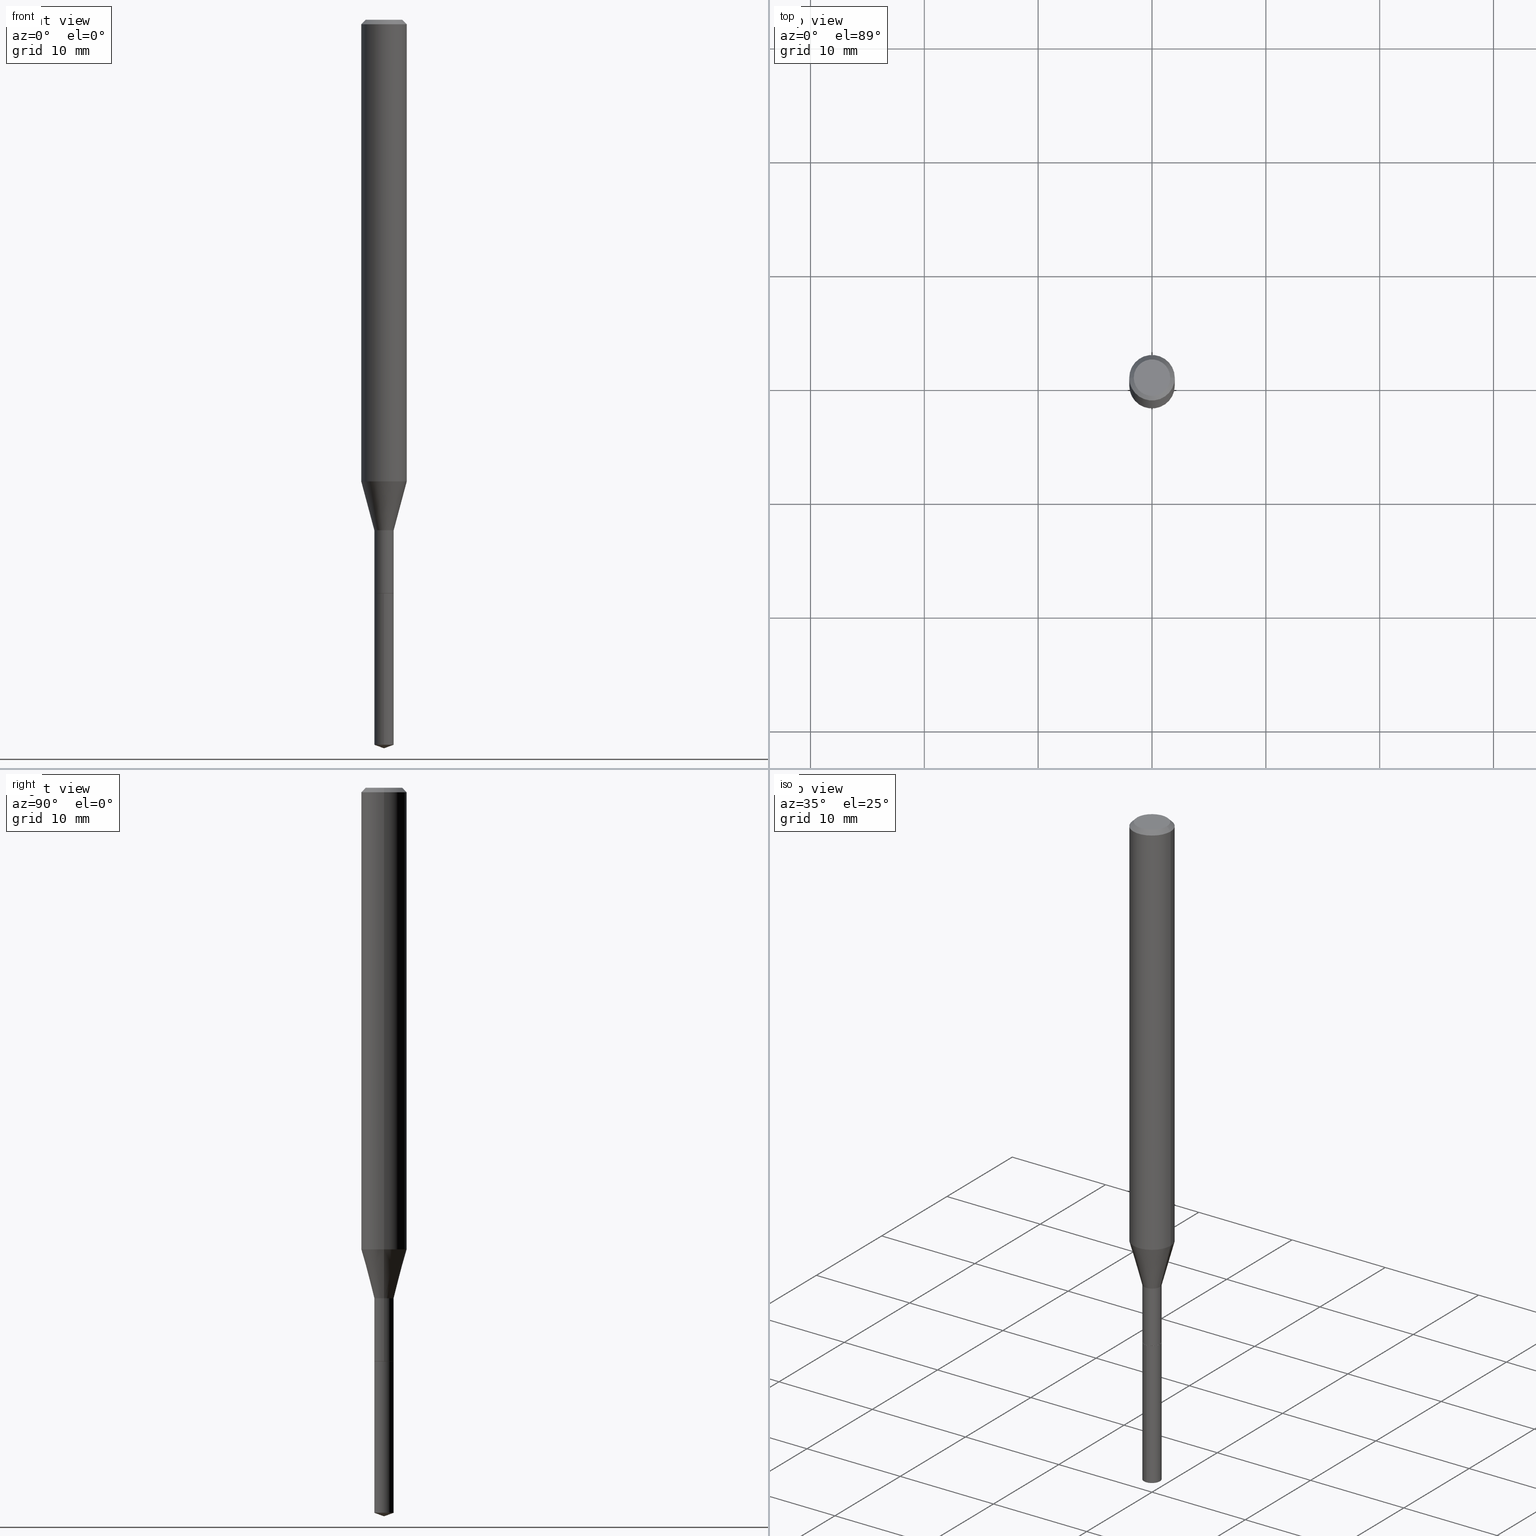
[diagram: canonical four-view strip — front | top / right | iso, engineering-drawing reading convention]
A machine part, canonical four-view strip (front | top / right | iso — engineering-drawing reading convention). The complete STEP part file that produces these views, byte-faithful:
ISO-10303-21;
HEADER;
FILE_DESCRIPTION (( 'STEP AP203' ),
    '1' );
FILE_NAME ('06007.STEP',
    '2024-04-23T19:00:32',
    ( '' ),
    ( '' ),
    'SwSTEP 2.0',
    'SolidWorks 2023',
    '' );
FILE_SCHEMA (( 'CONFIG_CONTROL_DESIGN' ));
ENDSEC;

DATA;
#1 = AXIS2_PLACEMENT_3D ( 'NONE', #441, #94, #180 ) ;
#2 = DIRECTION ( 'NONE',  ( 1.000000000000000000, -6.982962677686269077E-15, 0.000000000000000000 ) ) ;
#3 = ORIENTED_EDGE ( 'NONE', *, *, #461, .T. ) ;
#4 = DIRECTION ( 'NONE',  ( 2.445468806185136597E-29, -3.491481338843145583E-15, -1.000000000000000000 ) ) ;
#5 = ADVANCED_FACE ( 'NONE', ( #347 ), #416, .T. ) ;
#6 = DIRECTION ( 'NONE',  ( 1.000000000000000000, -6.982962677686264344E-15, 0.000000000000000000 ) ) ;
#7 = AXIS2_PLACEMENT_3D ( 'NONE', #42, #460, #79 ) ;
#8 = VECTOR ( 'NONE', #291, 39.37007874015748143 ) ;
#9 = DIRECTION ( 'NONE',  ( -0.7071067811865453523, 2.468850131082234184E-15, -0.7071067811865496822 ) ) ;
#10 = LINE ( 'NONE', #326, #344 ) ;
#11 = DIRECTION ( 'NONE',  ( -2.445468806185136597E-29, 3.491481338843145583E-15, 1.000000000000000000 ) ) ;
#12 = ORIENTED_EDGE ( 'NONE', *, *, #35, .F. ) ;
#13 = AXIS2_PLACEMENT_3D ( 'NONE', #165, #354, #420 ) ;
#14 = DIRECTION ( 'NONE',  ( -2.445468806185136597E-29, 3.491481338843145583E-15, 1.000000000000000000 ) ) ;
#15 = APPROVAL_PERSON_ORGANIZATION ( #192, #60, #309 ) ;
#16 = ORIENTED_EDGE ( 'NONE', *, *, #339, .F. ) ;
#17 = EDGE_CURVE ( 'NONE', #301, #332, #158, .T. ) ;
#18 = FACE_OUTER_BOUND ( 'NONE', #172, .T. ) ;
#19 = ORIENTED_EDGE ( 'NONE', *, *, #308, .T. ) ;
#20 = CYLINDRICAL_SURFACE ( 'NONE', #183, 0.07875000000000009770 ) ;
#21 = VERTEX_POINT ( 'NONE', #375 ) ;
#22 = COORDINATED_UNIVERSAL_TIME_OFFSET ( 5, 0, .BEHIND. ) ;
#23 = AXIS2_PLACEMENT_3D ( 'NONE', #488, #110, #269 ) ;
#24 = VECTOR ( 'NONE', #376, 39.37007874015748143 ) ;
#25 = ORIENTED_EDGE ( 'NONE', *, *, #448, .T. ) ;
#26 = ORIENTED_EDGE ( 'NONE', *, *, #474, .F. ) ;
#27 = ADVANCED_FACE ( 'NONE', ( #230 ), #452, .F. ) ;
#28 = DIRECTION ( 'NONE',  ( -2.445468806185136597E-29, 3.491481338843145583E-15, 1.000000000000000000 ) ) ;
#29 = DIRECTION ( 'NONE',  ( -2.445468806185136597E-29, 3.491481338843145583E-15, 1.000000000000000000 ) ) ;
#30 = APPROVAL_STATUS ( 'not_yet_approved' ) ;
#31 = EDGE_LOOP ( 'NONE', ( #470, #232, #196, #472 ) ) ;
#32 = AXIS2_PLACEMENT_3D ( 'NONE', #190, #78, #444 ) ;
#33 = AXIS2_PLACEMENT_3D ( 'NONE', #465, #39, #45 ) ;
#34 = DIRECTION ( 'NONE',  ( 1.000000000000000000, -6.982962677686251722E-15, 0.000000000000000000 ) ) ;
#35 = EDGE_CURVE ( 'NONE', #136, #290, #173, .T. ) ;
#36 = ORIENTED_EDGE ( 'NONE', *, *, #120, .F. ) ;
#37 = DATE_TIME_ROLE ( 'classification_date' ) ;
#38 = CARTESIAN_POINT ( 'NONE',  ( 3.851613369741614799E-31, -5.499083108677989540E-17, -0.01575000000000010072 ) ) ;
#39 = DIRECTION ( 'NONE',  ( -2.445468806185136597E-29, 3.491481338843145583E-15, 1.000000000000000000 ) ) ;
#40 = CIRCLE ( 'NONE', #66, 0.03344999999999999363 ) ;
#41 = CALENDAR_DATE ( 2024, 23, 4 ) ;
#42 = CARTESIAN_POINT ( 'NONE',  ( 6.132138657409497582E-29, -8.754885760387229464E-15, -2.507525195663795614 ) ) ;
#43 = EDGE_CURVE ( 'NONE', #431, #301, #349, .T. ) ;
#44 = ORIENTED_EDGE ( 'NONE', *, *, #129, .F. ) ;
#45 = DIRECTION ( 'NONE',  ( 1.000000000000000000, -6.982962677686255667E-15, 0.000000000000000000 ) ) ;
#46 = FACE_OUTER_BOUND ( 'NONE', #99, .T. ) ;
#47 = AXIS2_PLACEMENT_3D ( 'NONE', #338, #481, #262 ) ;
#48 = CIRCLE ( 'NONE', #216, 0.07875000000000019484 ) ;
#49 = EDGE_CURVE ( 'NONE', #107, #176, #412, .T. ) ;
#50 = FACE_OUTER_BOUND ( 'NONE', #405, .T. ) ;
#51 = DIRECTION ( 'NONE',  ( 6.676917655467983117E-15, 0.9396926207859117586, 0.3420201433256597756 ) ) ;
#52 = ORIENTED_EDGE ( 'NONE', *, *, #281, .F. ) ;
#53 = CARTESIAN_POINT ( 'NONE',  ( 3.904284117565225006E-29, -5.574282977375527399E-15, -1.596538098417129126 ) ) ;
#54 = VERTEX_POINT ( 'NONE', #298 ) ;
#55 = EDGE_CURVE ( 'NONE', #301, #431, #372, .T. ) ;
#56 = VECTOR ( 'NONE', #466, 39.37007874015748143 ) ;
#57 = CYLINDRICAL_SURFACE ( 'NONE', #479, 0.03345000000000000057 ) ;
#58 = LOCAL_TIME ( 15, 0, 32.00000000000000000, #148 ) ;
#59 = ORIENTED_EDGE ( 'NONE', *, *, #281, .T. ) ;
#60 = APPROVAL ( #480, 'UNSPECIFIED' ) ;
#61 = CYLINDRICAL_SURFACE ( 'NONE', #1, 0.07875000000000009770 ) ;
#62 = VERTEX_POINT ( 'NONE', #227 ) ;
#63 = ORIENTED_EDGE ( 'NONE', *, *, #378, .T. ) ;
#64 =( LENGTH_UNIT ( ) NAMED_UNIT ( * ) SI_UNIT ( $, .METRE. ) );
#65 = ADVANCED_FACE ( 'NONE', ( #414 ), #166, .T. ) ;
#66 = AXIS2_PLACEMENT_3D ( 'NONE', #395, #11, #476 ) ;
#67 = FACE_OUTER_BOUND ( 'NONE', #361, .T. ) ;
#68 = DIRECTION ( 'NONE',  ( 1.000000000000000000, -6.982962677686265922E-15, 0.000000000000000000 ) ) ;
#69 = DIRECTION ( 'NONE',  ( 0.2588190451025211836, 1.565188264969622559E-15, 0.9659258262890679791 ) ) ;
#70 = CC_DESIGN_DATE_AND_TIME_ASSIGNMENT ( #263, #229, ( #131 ) ) ;
#71 = CARTESIAN_POINT ( 'NONE',  ( 3.851613369741614799E-31, -5.499083108677989540E-17, -0.01575000000000010072 ) ) ;
#72 = ORIENTED_EDGE ( 'NONE', *, *, #461, .F. ) ;
#73 = ADVANCED_FACE ( 'NONE', ( #154 ), #343, .T. ) ;
#74 = CALENDAR_DATE ( 2024, 23, 4 ) ;
#75 = ORIENTED_EDGE ( 'NONE', *, *, #199, .F. ) ;
#76 = CIRCLE ( 'NONE', #302, 0.03345000000000000057 ) ;
#77 = SECURITY_CLASSIFICATION_LEVEL ( 'unclassified' ) ;
#78 = DIRECTION ( 'NONE',  ( -2.445468806185136597E-29, 3.491481338843145583E-15, 1.000000000000000000 ) ) ;
#79 = DIRECTION ( 'NONE',  ( -6.982962677686264344E-15, -1.000000000000000000, 0.000000000000000000 ) ) ;
#80 = FACE_OUTER_BOUND ( 'NONE', #468, .T. ) ;
#81 = EDGE_CURVE ( 'NONE', #290, #305, #112, .T. ) ;
#82 = LOCAL_TIME ( 15, 0, 32.00000000000000000, #145 ) ;
#83 = DIRECTION ( 'NONE',  ( -2.445468806185136877E-29, 3.491481338843145188E-15, 1.000000000000000000 ) ) ;
#84 = CARTESIAN_POINT ( 'NONE',  ( -2.335801015685570442E-16, -0.03345000000000692558, -1.984299999999999953 ) ) ;
#85 = ADVANCED_FACE ( 'NONE', ( #67 ), #226, .F. ) ;
#86 = FACE_OUTER_BOUND ( 'NONE', #442, .T. ) ;
#87 = AXIS2_PLACEMENT_3D ( 'NONE', #348, #4, #322 ) ;
#88 = AXIS2_PLACEMENT_3D ( 'NONE', #171, #248, #329 ) ;
#89 = PRODUCT_RELATED_PRODUCT_CATEGORY ( 'detail', '', ( #341 ) ) ;
#90 = LINE ( 'NONE', #393, #134 ) ;
#91 = ORIENTED_EDGE ( 'NONE', *, *, #489, .F. ) ;
#92 = DIRECTION ( 'NONE',  ( -2.445468806185136597E-29, 3.491481338843145583E-15, 1.000000000000000000 ) ) ;
#93 = EDGE_LOOP ( 'NONE', ( #450, #327, #364, #26 ) ) ;
#94 = DIRECTION ( 'NONE',  ( -2.445468806185136597E-29, 3.491481338843145583E-15, 1.000000000000000000 ) ) ;
#95 = VERTEX_POINT ( 'NONE', #424 ) ;
#96 = ADVANCED_FACE ( 'NONE', ( #163 ), #239, .T. ) ;
#97 = AXIS2_PLACEMENT_3D ( 'NONE', #272, #390, #421 ) ;
#98 = CARTESIAN_POINT ( 'NONE',  ( 3.851613369741614799E-31, -5.499083108677989540E-17, -0.01575000000000010072 ) ) ;
#99 = EDGE_LOOP ( 'NONE', ( #139, #19, #379, #478 ) ) ;
#100 = CARTESIAN_POINT ( 'NONE',  ( 0.07875000000000000056, -6.048991419545733705E-16, -0.01575000000000010072 ) ) ;
#101 = EDGE_LOOP ( 'NONE', ( #296, #382, #149, #422 ) ) ;
#102 = EDGE_CURVE ( 'NONE', #95, #107, #160, .T. ) ;
#103 = ORIENTED_EDGE ( 'NONE', *, *, #49, .T. ) ;
#104 = APPROVAL ( #319, 'UNSPECIFIED' ) ;
#105 = DIRECTION ( 'NONE',  ( 1.000000000000000000, 0.000000000000000000, 0.000000000000000000 ) ) ;
#106 = CIRCLE ( 'NONE', #314, 0.03344999999999999363 ) ;
#107 = VERTEX_POINT ( 'NONE', #387 ) ;
#108 = PRODUCT_DEFINITION_SHAPE ( 'NONE', 'NONE',  #131 ) ;
#109 = MECHANICAL_CONTEXT ( 'NONE', #299, 'mechanical' ) ;
#110 = DIRECTION ( 'NONE',  ( -2.445468806185136597E-29, 3.491481338843145583E-15, 1.000000000000000000 ) ) ;
#111 = PERSON_AND_ORGANIZATION_ROLE ( 'creator' ) ;
#112 = LINE ( 'NONE', #266, #115 ) ;
#113 = CARTESIAN_POINT ( 'NONE',  ( -2.335801015685570442E-16, -0.03345000000000692558, -1.984299999999999953 ) ) ;
#114 = CARTESIAN_POINT ( 'NONE',  ( 0.07875000000000000056, -5.952550484112880131E-16, -0.01575000000000010072 ) ) ;
#115 = VECTOR ( 'NONE', #408, 39.37007874015748143 ) ;
#116 = AXIS2_PLACEMENT_3D ( 'NONE', #259, #194, #346 ) ;
#117 = AXIS2_PLACEMENT_3D ( 'NONE', #132, #92, #282 ) ;
#118 = LINE ( 'NONE', #204, #312 ) ;
#119 = PERSON_AND_ORGANIZATION ( #235, #240 ) ;
#120 = EDGE_CURVE ( 'NONE', #305, #107, #490, .T. ) ;
#121 = DIRECTION ( 'NONE',  ( -6.982962677686267499E-15, -1.000000000000000000, 3.475157955500663810E-15 ) ) ;
#122 = EDGE_LOOP ( 'NONE', ( #205, #369, #213, #394 ) ) ;
#123 = CARTESIAN_POINT ( 'NONE',  ( 4.317719724200476827E-29, -6.164559451861457160E-15, -1.765599999999999836 ) ) ;
#124 = APPLICATION_CONTEXT ( 'configuration controlled 3d designs of mechanical parts and assemblies' ) ;
#125 = CIRCLE ( 'NONE', #453, 0.03345000000000000057 ) ;
#126 = PRODUCT_DEFINITION_FORMATION_WITH_SPECIFIED_SOURCE ( 'ANY', '', #341, .NOT_KNOWN. ) ;
#127 = COORDINATED_UNIVERSAL_TIME_OFFSET ( 5, 0, .BEHIND. ) ;
#128 = CARTESIAN_POINT ( 'NONE',  ( 4.317719724200476827E-29, -6.164559451861457160E-15, -1.765599999999999836 ) ) ;
#129 = EDGE_CURVE ( 'NONE', #62, #438, #223, .T. ) ;
#130 = CARTESIAN_POINT ( 'NONE',  ( 3.904284117565225006E-29, -5.574282977375527399E-15, -1.596538098417129126 ) ) ;
#131 = PRODUCT_DEFINITION ( 'UNKNOWN', '', #126, #455 ) ;
#132 = CARTESIAN_POINT ( 'NONE',  ( 0.000000000000000000, 0.000000000000000000, 0.000000000000000000 ) ) ;
#133 = ORIENTED_EDGE ( 'NONE', *, *, #17, .T. ) ;
#134 = VECTOR ( 'NONE', #51, 39.37007874015747433 ) ;
#135 = CARTESIAN_POINT ( 'NONE',  ( -0.03344999999999997281, -5.926882906749703792E-15, -1.765599999999999836 ) ) ;
#136 = VERTEX_POINT ( 'NONE', #462 ) ;
#137 = EDGE_CURVE ( 'NONE', #21, #273, #118, .T. ) ;
#138 = CARTESIAN_POINT ( 'NONE',  ( 0.000000000000000000, 0.000000000000000000, 0.000000000000000000 ) ) ;
#139 = ORIENTED_EDGE ( 'NONE', *, *, #339, .T. ) ;
#140 = LINE ( 'NONE', #135, #454 ) ;
#141 = ORIENTED_EDGE ( 'NONE', *, *, #233, .F. ) ;
#142 = CLOSED_SHELL ( 'NONE', ( #151, #267, #96, #345, #27 ) ) ;
#143 = CYLINDRICAL_SURFACE ( 'NONE', #117, 0.03344999999999997975 ) ;
#144 = ORIENTED_EDGE ( 'NONE', *, *, #440, .F. ) ;
#145 = COORDINATED_UNIVERSAL_TIME_OFFSET ( 5, 0, .BEHIND. ) ;
#146 = DIRECTION ( 'NONE',  ( 1.000000000000000000, -6.982962677686265922E-15, 4.875905316334701673E-29 ) ) ;
#147 = CC_DESIGN_PERSON_AND_ORGANIZATION_ASSIGNMENT ( #463, #278, ( #126 ) ) ;
#148 = COORDINATED_UNIVERSAL_TIME_OFFSET ( 5, 0, .BEHIND. ) ;
#149 = ORIENTED_EDGE ( 'NONE', *, *, #120, .T. ) ;
#150 = CARTESIAN_POINT ( 'NONE',  ( 0.000000000000000000, 0.000000000000000000, 0.000000000000000000 ) ) ;
#151 = ADVANCED_FACE ( 'NONE', ( #279 ), #458, .T. ) ;
#152 = AXIS2_PLACEMENT_3D ( 'NONE', #128, #238, #386 ) ;
#153 = VECTOR ( 'NONE', #9, 39.37007874015748143 ) ;
#154 = FACE_OUTER_BOUND ( 'NONE', #101, .T. ) ;
#155 =( CONVERSION_BASED_UNIT ( 'INCH', #265 ) LENGTH_UNIT ( ) NAMED_UNIT ( #324 ) );
#156 = VERTEX_POINT ( 'NONE', #84 ) ;
#157 = MANIFOLD_SOLID_BREP ( 'Body-Move/Copy2[2]', #363 ) ;
#158 = LINE ( 'NONE', #114, #477 ) ;
#159 = FACE_OUTER_BOUND ( 'NONE', #31, .T. ) ;
#160 = CIRCLE ( 'NONE', #152, 0.03344999999999997281 ) ;
#161 = CIRCLE ( 'NONE', #380, 0.07875000000000000056 ) ;
#162 = DIRECTION ( 'NONE',  ( -2.445591144885440366E-29, 3.491306142861223975E-15, 1.000000000000000000 ) ) ;
#163 = FACE_OUTER_BOUND ( 'NONE', #396, .T. ) ;
#164 = PERSON_AND_ORGANIZATION_ROLE ( 'classification_officer' ) ;
#165 = CARTESIAN_POINT ( 'NONE',  ( 4.852543752113166626E-29, -6.928146420666453587E-15, -1.984299999999999953 ) ) ;
#166 = CONICAL_SURFACE ( 'NONE', #32, 0.03295000000000000012, 0.7853981633975420928 ) ;
#167 = AXIS2_PLACEMENT_3D ( 'NONE', #300, #342, #297 ) ;
#168 = APPROVAL_DATE_TIME ( #426, #104 ) ;
#169 = DIRECTION ( 'NONE',  ( -2.445468806185136597E-29, 3.491481338843145583E-15, 1.000000000000000000 ) ) ;
#170 = DIRECTION ( 'NONE',  ( -6.561838499445215051E-15, -0.9396926207859092051, 0.3420201433256662704 ) ) ;
#171 = CARTESIAN_POINT ( 'NONE',  ( 4.317719724200476827E-29, -6.164559451861457160E-15, -1.765599999999999836 ) ) ;
#172 = EDGE_LOOP ( 'NONE', ( #415, #330, #283, #255 ) ) ;
#173 = CIRCLE ( 'NONE', #23, 0.03295000000000000012 ) ;
#174 = CONICAL_SURFACE ( 'NONE', #284, 108.1684023407352129, 1.221730476396036824 ) ;
#175 = CARTESIAN_POINT ( 'NONE',  ( -0.03344999999999999363, -6.307803520817490859E-15, -1.983800000000000008 ) ) ;
#176 = VERTEX_POINT ( 'NONE', #352 ) ;
#177 = ADVANCED_FACE ( 'NONE', ( #80 ), #275, .T. ) ;
#178 = DIRECTION ( 'NONE',  ( -6.982962677686264344E-15, -1.000000000000000000, 0.000000000000000000 ) ) ;
#179 = EDGE_LOOP ( 'NONE', ( #52, #247, #487, #222 ) ) ;
#180 = DIRECTION ( 'NONE',  ( 1.000000000000000000, -6.982962677686267499E-15, 4.876176775795935232E-29 ) ) ;
#181 = EDGE_CURVE ( 'NONE', #290, #136, #409, .T. ) ;
#182 = ORIENTED_EDGE ( 'NONE', *, *, #43, .T. ) ;
#183 = AXIS2_PLACEMENT_3D ( 'NONE', #138, #14, #211 ) ;
#184 = CALENDAR_DATE ( 2024, 23, 4 ) ;
#185 = CIRCLE ( 'NONE', #224, 0.03345000000000000057 ) ;
#186 = ORIENTED_EDGE ( 'NONE', *, *, #81, .F. ) ;
#187 =( NAMED_UNIT ( * ) SI_UNIT ( $, .STERADIAN. ) SOLID_ANGLE_UNIT ( ) );
#188 = CARTESIAN_POINT ( 'NONE',  ( 9.427742298522557911E-47, -1.346031739168366987E-32, -3.855188123715866879E-18 ) ) ;
#189 = PLANE ( 'NONE',  #167 ) ;
#190 = CARTESIAN_POINT ( 'NONE',  ( 4.852543752113166626E-29, -6.928146420666453587E-15, -1.984299999999999953 ) ) ;
#191 = EDGE_CURVE ( 'NONE', #136, #449, #318, .T. ) ;
#192 = PERSON_AND_ORGANIZATION ( #235, #240 ) ;
#193 = LOCAL_TIME ( 15, 0, 32.00000000000000000, #22 ) ;
#194 = DIRECTION ( 'NONE',  ( -2.445468806185136597E-29, 3.491481338843145583E-15, 1.000000000000000000 ) ) ;
#195 = FACE_OUTER_BOUND ( 'NONE', #335, .T. ) ;
#196 = ORIENTED_EDGE ( 'NONE', *, *, #81, .T. ) ;
#197 = PERSON_AND_ORGANIZATION ( #235, #240 ) ;
#198 = DIRECTION ( 'NONE',  ( -2.445591144885440366E-29, 3.491306142861223975E-15, 1.000000000000000000 ) ) ;
#199 = EDGE_CURVE ( 'NONE', #438, #62, #125, .T. ) ;
#200 = DIRECTION ( 'NONE',  ( -2.445468806185136597E-29, 3.491481338843145583E-15, 1.000000000000000000 ) ) ;
#201 = AXIS2_PLACEMENT_3D ( 'NONE', #241, #236, #427 ) ;
#202 = AXIS2_PLACEMENT_3D ( 'NONE', #123, #429, #207 ) ;
#203 = PERSON_AND_ORGANIZATION ( #235, #240 ) ;
#204 = CARTESIAN_POINT ( 'NONE',  ( -0.07875000000000009770, 5.595524044110795906E-16, -3.873661383575743397E-30 ) ) ;
#205 = ORIENTED_EDGE ( 'NONE', *, *, #17, .F. ) ;
#206 = ADVANCED_FACE ( 'NONE', ( #46 ), #293, .T. ) ;
#207 = DIRECTION ( 'NONE',  ( 1.000000000000000000, -6.982962677686255667E-15, 0.000000000000000000 ) ) ;
#208 = LINE ( 'NONE', #357, #153 ) ;
#209 = AXIS2_PLACEMENT_3D ( 'NONE', #38, #383, #446 ) ;
#210 = LOCAL_TIME ( 15, 0, 32.00000000000000000, #457 ) ;
#211 = DIRECTION ( 'NONE',  ( 1.000000000000000000, -6.982962677686267499E-15, 4.876176775795935232E-29 ) ) ;
#212 = CARTESIAN_POINT ( 'NONE',  ( 2.376765451118020311E-16, 0.03344999999999307555, -1.984299999999999953 ) ) ;
#213 = ORIENTED_EDGE ( 'NONE', *, *, #233, .T. ) ;
#214 = DIRECTION ( 'NONE',  ( -6.982962677686264344E-15, -1.000000000000000000, 0.000000000000000000 ) ) ;
#215 = ORIENTED_EDGE ( 'NONE', *, *, #425, .F. ) ;
#216 = AXIS2_PLACEMENT_3D ( 'NONE', #53, #360, #402 ) ;
#217 = CARTESIAN_POINT ( 'NONE',  ( 0.07875000000000009770, -5.499083108677942332E-16, 3.839989210939303921E-30 ) ) ;
#218 = ORIENTED_EDGE ( 'NONE', *, *, #181, .T. ) ;
#219 = ADVANCED_FACE ( 'NONE', ( #86 ), #358, .T. ) ;
#220 = DIRECTION ( 'NONE',  ( -0.2588190451025211836, 5.211531920934547886E-15, 0.9659258262890679791 ) ) ;
#221 = ORIENTED_EDGE ( 'NONE', *, *, #440, .T. ) ;
#222 = ORIENTED_EDGE ( 'NONE', *, *, #448, .F. ) ;
#223 = CIRCLE ( 'NONE', #7, 0.03345000000000000057 ) ;
#224 = AXIS2_PLACEMENT_3D ( 'NONE', #366, #467, #214 ) ;
#225 = APPLICATION_PROTOCOL_DEFINITION ( 'international standard', 'config_control_design', 1994, #124 ) ;
#226 = PLANE ( 'NONE',  #97 ) ;
#227 = CARTESIAN_POINT ( 'NONE',  ( -2.335801015685441759E-16, -0.03345000000000874357, -2.507525195663795614 ) ) ;
#228 = ADVANCED_FACE ( 'NONE', ( #159 ), #418, .T. ) ;
#229 = DATE_TIME_ROLE ( 'creation_date' ) ;
#230 = FACE_OUTER_BOUND ( 'NONE', #399, .T. ) ;
#231 = LOCAL_TIME ( 15, 0, 32.00000000000000000, #127 ) ;
#232 = ORIENTED_EDGE ( 'NONE', *, *, #35, .T. ) ;
#233 = EDGE_CURVE ( 'NONE', #431, #273, #208, .T. ) ;
#234 = ORIENTED_EDGE ( 'NONE', *, *, #129, .T. ) ;
#235 = PERSON ( 'UNSPECIFIED', 'UNSPECIFIED', 'UNSPECIFIED', ('UNSPECIFIED'), ('UNSPECIFIED'), ('UNSPECIFIED') ) ;
#236 = DIRECTION ( 'NONE',  ( -2.445468806185136597E-29, 3.491481338843145583E-15, 1.000000000000000000 ) ) ;
#237 = DATE_AND_TIME ( #41, #231 ) ;
#238 = DIRECTION ( 'NONE',  ( -2.445468806185136597E-29, 3.491481338843145583E-15, 1.000000000000000000 ) ) ;
#239 = CONICAL_SURFACE ( 'NONE', #321, 108.1684023407352129, 1.221730476396036824 ) ;
#240 = ORGANIZATION ( 'UNSPECIFIED', 'UNSPECIFIED', '' ) ;
#241 = CARTESIAN_POINT ( 'NONE',  ( 4.852543752113166626E-29, -6.928146420666453587E-15, -1.984299999999999953 ) ) ;
#242 = APPROVAL_DATE_TIME ( #261, #406 ) ;
#243 = CARTESIAN_POINT ( 'NONE',  ( -0.03295000000000000012, -6.694022589233500328E-15, -1.984299999999999953 ) ) ;
#244 = CARTESIAN_POINT ( 'NONE',  ( -9.012120268928684992E-28, 1.286556060208875474E-13, 36.85037874015748116 ) ) ;
#245 = CIRCLE ( 'NONE', #410, 0.07875000000000000056 ) ;
#246 = CARTESIAN_POINT ( 'NONE',  ( -0.07875000000000000056, -2.255084499820072593E-15, -0.01575000000000010072 ) ) ;
#247 = ORIENTED_EDGE ( 'NONE', *, *, #199, .T. ) ;
#248 = DIRECTION ( 'NONE',  ( -2.445468806185136597E-29, 3.491481338843145583E-15, 1.000000000000000000 ) ) ;
#249 = ORIENTED_EDGE ( 'NONE', *, *, #378, .F. ) ;
#250 = DIRECTION ( 'NONE',  ( -2.445591144885440366E-29, 3.491306142861223975E-15, 1.000000000000000000 ) ) ;
#251 = ORIENTED_EDGE ( 'NONE', *, *, #425, .T. ) ;
#252 = EDGE_CURVE ( 'NONE', #21, #176, #456, .T. ) ;
#253 = SECURITY_CLASSIFICATION ( '', '', #77 ) ;
#254 = DIRECTION ( 'NONE',  ( -2.445468806185136597E-29, 3.491481338843145583E-15, 1.000000000000000000 ) ) ;
#255 = ORIENTED_EDGE ( 'NONE', *, *, #356, .F. ) ;
#256 = DIRECTION ( 'NONE',  ( -2.445468806185136877E-29, 3.491481338843145188E-15, 1.000000000000000000 ) ) ;
#257 = ORIENTED_EDGE ( 'NONE', *, *, #55, .F. ) ;
#258 = CARTESIAN_POINT ( 'NONE',  ( 2.376765451118148994E-16, 0.03344999999999307555, -1.984299999999999953 ) ) ;
#259 = CARTESIAN_POINT ( 'NONE',  ( 0.000000000000000000, 0.000000000000000000, 0.000000000000000000 ) ) ;
#260 = AXIS2_PLACEMENT_3D ( 'NONE', #150, #303, #105 ) ;
#261 = DATE_AND_TIME ( #184, #193 ) ;
#262 = DIRECTION ( 'NONE',  ( 6.982962677686265922E-15, 1.000000000000000000, -3.491306142861223581E-15 ) ) ;
#263 = DATE_AND_TIME ( #74, #58 ) ;
#264 = ORIENTED_EDGE ( 'NONE', *, *, #276, .T. ) ;
#265 = LENGTH_MEASURE_WITH_UNIT ( LENGTH_MEASURE( 0.02539999999999999897 ), #64 );
#266 = CARTESIAN_POINT ( 'NONE',  ( 0.03295000000000000012, -7.158235040896215646E-15, -1.984299999999999953 ) ) ;
#267 = ADVANCED_FACE ( 'NONE', ( #280 ), #174, .T. ) ;
#268 = AXIS2_PLACEMENT_3D ( 'NONE', #130, #169, #2 ) ;
#269 = DIRECTION ( 'NONE',  ( 1.000000000000000000, -6.982962677686264344E-15, 0.000000000000000000 ) ) ;
#270 = DIRECTION ( 'NONE',  ( -2.445468806185136877E-29, 3.491481338843145188E-15, 1.000000000000000000 ) ) ;
#271 = SHAPE_DEFINITION_REPRESENTATION ( #108, #325 ) ;
#272 = CARTESIAN_POINT ( 'NONE',  ( 4.713871149261278955E-47, -6.730158695841834933E-33, -1.927594061857933439E-18 ) ) ;
#273 = VERTEX_POINT ( 'NONE', #246 ) ;
#274 = CARTESIAN_POINT ( 'NONE',  ( -9.012120268928684992E-28, 1.286556060208875474E-13, 36.85037874015748116 ) ) ;
#275 = CONICAL_SURFACE ( 'NONE', #87, 0.07875000000000000056, 0.7853981633974452814 ) ;
#276 = EDGE_CURVE ( 'NONE', #449, #95, #471, .T. ) ;
#277 = CC_DESIGN_APPROVAL ( #60, ( #131 ) ) ;
#278 = PERSON_AND_ORGANIZATION_ROLE ( 'creator' ) ;
#279 = FACE_OUTER_BOUND ( 'NONE', #433, .T. ) ;
#280 = FACE_OUTER_BOUND ( 'NONE', #367, .T. ) ;
#281 = EDGE_CURVE ( 'NONE', #438, #475, #398, .T. ) ;
#282 = DIRECTION ( 'NONE',  ( 1.000000000000000000, -6.982962677686265922E-15, 4.876176775795935793E-29 ) ) ;
#283 = ORIENTED_EDGE ( 'NONE', *, *, #351, .F. ) ;
#284 = AXIS2_PLACEMENT_3D ( 'NONE', #244, #162, #317 ) ;
#285 = CC_DESIGN_PERSON_AND_ORGANIZATION_ASSIGNMENT ( #197, #164, ( #253 ) ) ;
#286 = CARTESIAN_POINT ( 'NONE',  ( 4.852543752113166626E-29, -6.928146420666453587E-15, -1.984299999999999953 ) ) ;
#287 = ORIENTED_EDGE ( 'NONE', *, *, #252, .F. ) ;
#288 = CARTESIAN_POINT ( 'NONE',  ( -0.06300000000000000044, 4.674220642376242452E-16, -3.855188123719040041E-18 ) ) ;
#289 = ADVANCED_FACE ( 'NONE', ( #434 ), #20, .T. ) ;
#290 = VERTEX_POINT ( 'NONE', #334 ) ;
#291 = DIRECTION ( 'NONE',  ( -2.445468806185136877E-29, 3.491481338843145188E-15, 1.000000000000000000 ) ) ;
#292 = ORIENTED_EDGE ( 'NONE', *, *, #102, .T. ) ;
#293 = CONICAL_SURFACE ( 'NONE', #33, 0.03344999999999997281, 0.2617993877991499074 ) ;
#294 = APPROVAL_PERSON_ORGANIZATION ( #203, #104, #313 ) ;
#295 = CARTESIAN_POINT ( 'NONE',  ( 0.06300000000000000044, -5.137332111354472216E-16, -3.855188123712532709E-18 ) ) ;
#296 = ORIENTED_EDGE ( 'NONE', *, *, #276, .F. ) ;
#297 = DIRECTION ( 'NONE',  ( 1.000000000000000000, -6.982962677686265922E-15, 4.876176775795935793E-29 ) ) ;
#298 = CARTESIAN_POINT ( 'NONE',  ( 6.162156007767844881E-29, -8.797044088167425545E-15, -2.519699999999999829 ) ) ;
#299 = APPLICATION_CONTEXT ( 'configuration controlled 3d designs of mechanical parts and assemblies' ) ;
#300 = CARTESIAN_POINT ( 'NONE',  ( 4.852543752113166626E-29, -6.928146420666453587E-15, -1.984299999999999953 ) ) ;
#301 = VERTEX_POINT ( 'NONE', #295 ) ;
#302 = AXIS2_PLACEMENT_3D ( 'NONE', #286, #362, #432 ) ;
#303 = DIRECTION ( 'NONE',  ( 0.000000000000000000, 0.000000000000000000, 1.000000000000000000 ) ) ;
#304 = CC_DESIGN_APPROVAL ( #104, ( #253 ) ) ;
#305 = VERTEX_POINT ( 'NONE', #469 ) ;
#306 = CARTESIAN_POINT ( 'NONE',  ( 4.851321017710073825E-29, -6.926400679997032083E-15, -1.983800000000000008 ) ) ;
#307 = DIRECTION ( 'NONE',  ( 1.000000000000000000, -6.982962677686265922E-15, 4.875905316334701673E-29 ) ) ;
#308 = EDGE_CURVE ( 'NONE', #95, #21, #140, .T. ) ;
#309 = APPROVAL_ROLE ( '' ) ;
#310 = CARTESIAN_POINT ( 'NONE',  ( 0.03344999999999997281, -6.398139553430062226E-15, -1.765599999999999836 ) ) ;
#311 = CC_DESIGN_DATE_AND_TIME_ASSIGNMENT ( #237, #37, ( #253 ) ) ;
#312 = VECTOR ( 'NONE', #270, 39.37007874015748143 ) ;
#313 = APPROVAL_ROLE ( '' ) ;
#314 = AXIS2_PLACEMENT_3D ( 'NONE', #306, #28, #34 ) ;
#315 = CARTESIAN_POINT ( 'NONE',  ( 4.852543752113166626E-29, -6.928146420666453587E-15, -1.984299999999999953 ) ) ;
#316 = PERSON_AND_ORGANIZATION_ROLE ( 'design_supplier' ) ;
#317 = DIRECTION ( 'NONE',  ( -6.982962677686267499E-15, -1.000000000000000000, 3.475157955500663810E-15 ) ) ;
#318 = LINE ( 'NONE', #243, #56 ) ;
#319 = APPROVAL_STATUS ( 'not_yet_approved' ) ;
#320 = CARTESIAN_POINT ( 'NONE',  ( 6.132138657409497582E-29, -8.754885760387229464E-15, -2.507525195663795614 ) ) ;
#321 = AXIS2_PLACEMENT_3D ( 'NONE', #274, #198, #121 ) ;
#322 = DIRECTION ( 'NONE',  ( -1.000000000000000000, 6.982962677686265922E-15, 0.000000000000000000 ) ) ;
#323 = CARTESIAN_POINT ( 'NONE',  ( 2.376765451118147515E-16, 0.03344999999999123674, -2.507525195663795614 ) ) ;
#324 = DIMENSIONAL_EXPONENTS ( 1.000000000000000000, 0.000000000000000000, 0.000000000000000000, 0.000000000000000000, 0.000000000000000000, 0.000000000000000000, 0.000000000000000000 ) ;
#325 = ADVANCED_BREP_SHAPE_REPRESENTATION ( '06007', ( #333, #157, #260 ), #439 ) ;
#326 = CARTESIAN_POINT ( 'NONE',  ( 6.161670494401817839E-29, -8.797739370941279252E-15, -2.519699999999999829 ) ) ;
#327 = ORIENTED_EDGE ( 'NONE', *, *, #252, .T. ) ;
#328 = VECTOR ( 'NONE', #473, 39.37007874015748143 ) ;
#329 = DIRECTION ( 'NONE',  ( 1.000000000000000000, -6.982962677686255667E-15, 0.000000000000000000 ) ) ;
#330 = ORIENTED_EDGE ( 'NONE', *, *, #137, .T. ) ;
#331 = CARTESIAN_POINT ( 'NONE',  ( -0.03344999999999997975, 2.376765451117533683E-16, -1.645383787690264877E-30 ) ) ;
#332 = VERTEX_POINT ( 'NONE', #100 ) ;
#333 = MANIFOLD_SOLID_BREP ( 'Body-Move/Copy2[1]', #142 ) ;
#334 = CARTESIAN_POINT ( 'NONE',  ( 0.03295000000000000012, -7.158235040896215646E-15, -1.984299999999999953 ) ) ;
#335 = EDGE_LOOP ( 'NONE', ( #403, #12 ) ) ;
#336 = VECTOR ( 'NONE', #69, 39.37007874015748854 ) ;
#337 = DIRECTION ( 'NONE',  ( -2.445468806185136597E-29, 3.491481338843145583E-15, 1.000000000000000000 ) ) ;
#338 = CARTESIAN_POINT ( 'NONE',  ( 4.852543752113166626E-29, -6.928146420666453587E-15, -1.984299999999999953 ) ) ;
#339 = EDGE_CURVE ( 'NONE', #107, #95, #423, .T. ) ;
#340 = DIRECTION ( 'NONE',  ( -2.445468806185136597E-29, 3.491481338843145583E-15, 1.000000000000000000 ) ) ;
#341 = PRODUCT ( '06007', '06007', '', ( #109 ) ) ;
#342 = DIRECTION ( 'NONE',  ( -2.438088387897960049E-29, 3.491481338843145188E-15, 1.000000000000000000 ) ) ;
#343 = CYLINDRICAL_SURFACE ( 'NONE', #116, 0.03344999999999997975 ) ;
#344 = VECTOR ( 'NONE', #170, 39.37007874015748854 ) ;
#345 = ADVANCED_FACE ( 'NONE', ( #436 ), #57, .T. ) ;
#346 = DIRECTION ( 'NONE',  ( 1.000000000000000000, -6.982962677686265922E-15, 4.876176775795935793E-29 ) ) ;
#347 = FACE_OUTER_BOUND ( 'NONE', #122, .T. ) ;
#348 = CARTESIAN_POINT ( 'NONE',  ( 3.851613369741614799E-31, -5.499083108677989540E-17, -0.01575000000000010072 ) ) ;
#349 = CIRCLE ( 'NONE', #389, 0.06300000000000000044 ) ;
#350 = DIRECTION ( 'NONE',  ( -2.445591144885440366E-29, 3.491306142861223975E-15, 1.000000000000000000 ) ) ;
#351 = EDGE_CURVE ( 'NONE', #332, #273, #161, .T. ) ;
#352 = CARTESIAN_POINT ( 'NONE',  ( 0.07875000000000019484, -6.124191288243322322E-15, -1.596538098417129126 ) ) ;
#353 = EDGE_LOOP ( 'NONE', ( #218, #483, #72, #186 ) ) ;
#354 = DIRECTION ( 'NONE',  ( -2.445591144885440366E-29, 3.491306142861223975E-15, 1.000000000000000000 ) ) ;
#355 = CALENDAR_DATE ( 2024, 23, 4 ) ;
#356 = EDGE_CURVE ( 'NONE', #176, #332, #430, .T. ) ;
#357 = CARTESIAN_POINT ( 'NONE',  ( -0.07875000000000000056, 4.949174797810136167E-16, -0.01575000000000010072 ) ) ;
#358 = CONICAL_SURFACE ( 'NONE', #202, 0.03344999999999997281, 0.2617993877991499074 ) ;
#359 = CARTESIAN_POINT ( 'NONE',  ( 4.852543752113166626E-29, -6.928146420666453587E-15, -1.984299999999999953 ) ) ;
#360 = DIRECTION ( 'NONE',  ( -2.445468806185136597E-29, 3.491481338843145583E-15, 1.000000000000000000 ) ) ;
#361 = EDGE_LOOP ( 'NONE', ( #182, #435 ) ) ;
#362 = DIRECTION ( 'NONE',  ( -2.445591144885440366E-29, 3.491306142861223975E-15, 1.000000000000000000 ) ) ;
#363 = CLOSED_SHELL ( 'NONE', ( #65, #177, #388, #206, #404, #73, #219, #289, #5, #85, #484, #228 ) ) ;
#364 = ORIENTED_EDGE ( 'NONE', *, *, #356, .T. ) ;
#365 = EDGE_CURVE ( 'NONE', #176, #21, #48, .T. ) ;
#366 = CARTESIAN_POINT ( 'NONE',  ( 4.852543752113166626E-29, -6.928146420666453587E-15, -1.984299999999999953 ) ) ;
#367 = EDGE_LOOP ( 'NONE', ( #215, #221, #44 ) ) ;
#368 = DIRECTION ( 'NONE',  ( 1.000000000000000000, -6.982962677686265922E-15, 0.000000000000000000 ) ) ;
#369 = ORIENTED_EDGE ( 'NONE', *, *, #43, .F. ) ;
#370 = APPROVAL_ROLE ( '' ) ;
#371 = ORIENTED_EDGE ( 'NONE', *, *, #308, .F. ) ;
#372 = CIRCLE ( 'NONE', #391, 0.06300000000000000044 ) ;
#373 = VECTOR ( 'NONE', #256, 39.37007874015748143 ) ;
#374 = APPROVAL_DATE_TIME ( #443, #60 ) ;
#375 = CARTESIAN_POINT ( 'NONE',  ( -0.07875000000000019484, -5.014730572964447019E-15, -1.596538098417129126 ) ) ;
#376 = DIRECTION ( 'NONE',  ( -2.445591144885440366E-29, 3.491306142861223581E-15, 1.000000000000000000 ) ) ;
#377 = ORIENTED_EDGE ( 'NONE', *, *, #351, .T. ) ;
#378 = EDGE_CURVE ( 'NONE', #156, #475, #185, .T. ) ;
#379 = ORIENTED_EDGE ( 'NONE', *, *, #365, .F. ) ;
#380 = AXIS2_PLACEMENT_3D ( 'NONE', #98, #254, #368 ) ;
#381 = LINE ( 'NONE', #113, #24 ) ;
#382 = ORIENTED_EDGE ( 'NONE', *, *, #397, .T. ) ;
#383 = DIRECTION ( 'NONE',  ( 2.445468806185136597E-29, -3.491481338843145583E-15, -1.000000000000000000 ) ) ;
#384 = CARTESIAN_POINT ( 'NONE',  ( 0.03344999999999997975, -2.335801015686054605E-16, 1.631081131503739477E-30 ) ) ;
#385 = DIRECTION ( 'NONE',  ( -6.982962677686264344E-15, -1.000000000000000000, 0.000000000000000000 ) ) ;
#386 = DIRECTION ( 'NONE',  ( 1.000000000000000000, -6.982962677686255667E-15, 0.000000000000000000 ) ) ;
#387 = CARTESIAN_POINT ( 'NONE',  ( 0.03344999999999997281, -6.398139553430062226E-15, -1.765599999999999836 ) ) ;
#388 = ADVANCED_FACE ( 'NONE', ( #18 ), #61, .T. ) ;
#389 = AXIS2_PLACEMENT_3D ( 'NONE', #188, #340, #146 ) ;
#390 = DIRECTION ( 'NONE',  ( 2.438088387897960049E-29, -3.491481338843145188E-15, -1.000000000000000000 ) ) ;
#391 = AXIS2_PLACEMENT_3D ( 'NONE', #419, #29, #307 ) ;
#392 = AXIS2_PLACEMENT_3D ( 'NONE', #315, #200, #6 ) ;
#393 = CARTESIAN_POINT ( 'NONE',  ( 6.162160265146961802E-29, -8.797044088167425545E-15, -2.519699999999999829 ) ) ;
#394 = ORIENTED_EDGE ( 'NONE', *, *, #474, .T. ) ;
#395 = CARTESIAN_POINT ( 'NONE',  ( 4.851321017710073825E-29, -6.926400679997032083E-15, -1.983800000000000008 ) ) ;
#396 = EDGE_LOOP ( 'NONE', ( #144, #251, #75 ) ) ;
#397 = EDGE_CURVE ( 'NONE', #449, #305, #40, .T. ) ;
#398 = LINE ( 'NONE', #212, #328 ) ;
#399 = EDGE_LOOP ( 'NONE', ( #63, #25 ) ) ;
#400 = APPROVAL_PERSON_ORGANIZATION ( #451, #406, #370 ) ;
#401 = CC_DESIGN_PERSON_AND_ORGANIZATION_ASSIGNMENT ( #411, #413, ( #341 ) ) ;
#402 = DIRECTION ( 'NONE',  ( 1.000000000000000000, -6.982962677686269077E-15, 0.000000000000000000 ) ) ;
#403 = ORIENTED_EDGE ( 'NONE', *, *, #181, .F. ) ;
#404 = ADVANCED_FACE ( 'NONE', ( #50 ), #143, .T. ) ;
#405 = EDGE_LOOP ( 'NONE', ( #3, #264, #16, #36 ) ) ;
#406 = APPROVAL ( #30, 'UNSPECIFIED' ) ;
#407 =( NAMED_UNIT ( * ) PLANE_ANGLE_UNIT ( ) SI_UNIT ( $, .RADIAN. ) );
#408 = DIRECTION ( 'NONE',  ( 0.7071067811866138531, -2.468850131082952047E-15, 0.7071067811864811814 ) ) ;
#409 = CIRCLE ( 'NONE', #201, 0.03295000000000000012 ) ;
#410 = AXIS2_PLACEMENT_3D ( 'NONE', #71, #337, #68 ) ;
#411 = PERSON_AND_ORGANIZATION ( #235, #240 ) ;
#412 = LINE ( 'NONE', #310, #336 ) ;
#413 = PERSON_AND_ORGANIZATION_ROLE ( 'design_owner' ) ;
#414 = FACE_OUTER_BOUND ( 'NONE', #353, .T. ) ;
#415 = ORIENTED_EDGE ( 'NONE', *, *, #365, .T. ) ;
#416 = CONICAL_SURFACE ( 'NONE', #209, 0.07875000000000000056, 0.7853981633974452814 ) ;
#417 = UNCERTAINTY_MEASURE_WITH_UNIT (LENGTH_MEASURE( 1.000000000000000082E-05 ), #155, 'distance_accuracy_value', 'NONE');
#418 = CONICAL_SURFACE ( 'NONE', #392, 0.03295000000000000012, 0.7853981633975420928 ) ;
#419 = CARTESIAN_POINT ( 'NONE',  ( 9.427742298522557911E-47, -1.346031739168366987E-32, -3.855188123715866879E-18 ) ) ;
#420 = DIRECTION ( 'NONE',  ( -6.982962677686264344E-15, -1.000000000000000000, 0.000000000000000000 ) ) ;
#421 = DIRECTION ( 'NONE',  ( -1.000000000000000000, 6.982962677686265922E-15, -4.876176775795935793E-29 ) ) ;
#422 = ORIENTED_EDGE ( 'NONE', *, *, #102, .F. ) ;
#423 = CIRCLE ( 'NONE', #88, 0.03344999999999997281 ) ;
#424 = CARTESIAN_POINT ( 'NONE',  ( -0.03344999999999997281, -6.307803520817490859E-15, -1.765599999999999836 ) ) ;
#425 = EDGE_CURVE ( 'NONE', #54, #62, #10, .T. ) ;
#426 = DATE_AND_TIME ( #355, #210 ) ;
#427 = DIRECTION ( 'NONE',  ( 1.000000000000000000, -6.982962677686264344E-15, 0.000000000000000000 ) ) ;
#428 = CC_DESIGN_PERSON_AND_ORGANIZATION_ASSIGNMENT ( #119, #316, ( #126 ) ) ;
#429 = DIRECTION ( 'NONE',  ( -2.445468806185136597E-29, 3.491481338843145583E-15, 1.000000000000000000 ) ) ;
#430 = LINE ( 'NONE', #217, #373 ) ;
#431 = VERTEX_POINT ( 'NONE', #288 ) ;
#432 = DIRECTION ( 'NONE',  ( -6.982962677686264344E-15, -1.000000000000000000, 0.000000000000000000 ) ) ;
#433 = EDGE_LOOP ( 'NONE', ( #234, #59, #249, #91 ) ) ;
#434 = FACE_OUTER_BOUND ( 'NONE', #93, .T. ) ;
#435 = ORIENTED_EDGE ( 'NONE', *, *, #55, .T. ) ;
#436 = FACE_OUTER_BOUND ( 'NONE', #179, .T. ) ;
#437 = VECTOR ( 'NONE', #83, 39.37007874015748143 ) ;
#438 = VERTEX_POINT ( 'NONE', #323 ) ;
#439 =( GEOMETRIC_REPRESENTATION_CONTEXT ( 3 ) GLOBAL_UNCERTAINTY_ASSIGNED_CONTEXT ( ( #417 ) ) GLOBAL_UNIT_ASSIGNED_CONTEXT ( ( #155, #407, #187 ) ) REPRESENTATION_CONTEXT ( 'NONE', 'WORKASPACE' ) );
#440 = EDGE_CURVE ( 'NONE', #54, #438, #90, .T. ) ;
#441 = CARTESIAN_POINT ( 'NONE',  ( 0.000000000000000000, 0.000000000000000000, 0.000000000000000000 ) ) ;
#442 = EDGE_LOOP ( 'NONE', ( #371, #292, #103, #287 ) ) ;
#443 = DATE_AND_TIME ( #445, #82 ) ;
#444 = DIRECTION ( 'NONE',  ( 1.000000000000000000, -6.982962677686264344E-15, 0.000000000000000000 ) ) ;
#445 = CALENDAR_DATE ( 2024, 23, 4 ) ;
#446 = DIRECTION ( 'NONE',  ( -1.000000000000000000, 6.982962677686265922E-15, 0.000000000000000000 ) ) ;
#447 = APPLICATION_PROTOCOL_DEFINITION ( 'international standard', 'config_control_design', 1994, #299 ) ;
#448 = EDGE_CURVE ( 'NONE', #475, #156, #76, .T. ) ;
#449 = VERTEX_POINT ( 'NONE', #175 ) ;
#450 = ORIENTED_EDGE ( 'NONE', *, *, #137, .F. ) ;
#451 = PERSON_AND_ORGANIZATION ( #235, #240 ) ;
#452 = PLANE ( 'NONE',  #47 ) ;
#453 = AXIS2_PLACEMENT_3D ( 'NONE', #320, #350, #385 ) ;
#454 = VECTOR ( 'NONE', #220, 39.37007874015748854 ) ;
#455 = DESIGN_CONTEXT ( 'detailed design', #124, 'design' ) ;
#456 = CIRCLE ( 'NONE', #268, 0.07875000000000019484 ) ;
#457 = COORDINATED_UNIVERSAL_TIME_OFFSET ( 5, 0, .BEHIND. ) ;
#458 = CYLINDRICAL_SURFACE ( 'NONE', #13, 0.03345000000000000057 ) ;
#459 = CC_DESIGN_PERSON_AND_ORGANIZATION_ASSIGNMENT ( #482, #111, ( #131 ) ) ;
#460 = DIRECTION ( 'NONE',  ( -2.445591144885440366E-29, 3.491306142861223975E-15, 1.000000000000000000 ) ) ;
#461 = EDGE_CURVE ( 'NONE', #305, #449, #106, .T. ) ;
#462 = CARTESIAN_POINT ( 'NONE',  ( -0.03295000000000000012, -6.691373362059389127E-15, -1.984299999999999953 ) ) ;
#463 = PERSON_AND_ORGANIZATION ( #235, #240 ) ;
#464 = CC_DESIGN_APPROVAL ( #406, ( #126 ) ) ;
#465 = CARTESIAN_POINT ( 'NONE',  ( 4.317719724200476827E-29, -6.164559451861457160E-15, -1.765599999999999836 ) ) ;
#466 = DIRECTION ( 'NONE',  ( -0.7071067811866138531, 7.493145998870593974E-15, 0.7071067811864811814 ) ) ;
#467 = DIRECTION ( 'NONE',  ( -2.445591144885440366E-29, 3.491306142861223975E-15, 1.000000000000000000 ) ) ;
#468 = EDGE_LOOP ( 'NONE', ( #257, #133, #377, #141 ) ) ;
#469 = CARTESIAN_POINT ( 'NONE',  ( 0.03344999999999999363, -7.159980781565636360E-15, -1.983800000000000008 ) ) ;
#470 = ORIENTED_EDGE ( 'NONE', *, *, #191, .F. ) ;
#471 = LINE ( 'NONE', #331, #8 ) ;
#472 = ORIENTED_EDGE ( 'NONE', *, *, #397, .F. ) ;
#473 = DIRECTION ( 'NONE',  ( -2.445591144885440366E-29, 3.491306142861223581E-15, 1.000000000000000000 ) ) ;
#474 = EDGE_CURVE ( 'NONE', #273, #332, #245, .T. ) ;
#475 = VERTEX_POINT ( 'NONE', #258 ) ;
#476 = DIRECTION ( 'NONE',  ( 1.000000000000000000, -6.982962677686251722E-15, 0.000000000000000000 ) ) ;
#477 = VECTOR ( 'NONE', #485, 39.37007874015748143 ) ;
#478 = ORIENTED_EDGE ( 'NONE', *, *, #49, .F. ) ;
#479 = AXIS2_PLACEMENT_3D ( 'NONE', #359, #250, #178 ) ;
#480 = APPROVAL_STATUS ( 'not_yet_approved' ) ;
#481 = DIRECTION ( 'NONE',  ( 2.445591144885440366E-29, -3.491306142861223581E-15, -1.000000000000000000 ) ) ;
#482 = PERSON_AND_ORGANIZATION ( #235, #240 ) ;
#483 = ORIENTED_EDGE ( 'NONE', *, *, #191, .T. ) ;
#484 = ADVANCED_FACE ( 'NONE', ( #195 ), #189, .F. ) ;
#485 = DIRECTION ( 'NONE',  ( 0.7071067811865453523, -7.319954787623248157E-15, -0.7071067811865496822 ) ) ;
#486 = CC_DESIGN_SECURITY_CLASSIFICATION ( #253, ( #126 ) ) ;
#487 = ORIENTED_EDGE ( 'NONE', *, *, #489, .T. ) ;
#488 = CARTESIAN_POINT ( 'NONE',  ( 4.852543752113166626E-29, -6.928146420666453587E-15, -1.984299999999999953 ) ) ;
#489 = EDGE_CURVE ( 'NONE', #62, #156, #381, .T. ) ;
#490 = LINE ( 'NONE', #384, #437 ) ;
ENDSEC;
END-ISO-10303-21;
